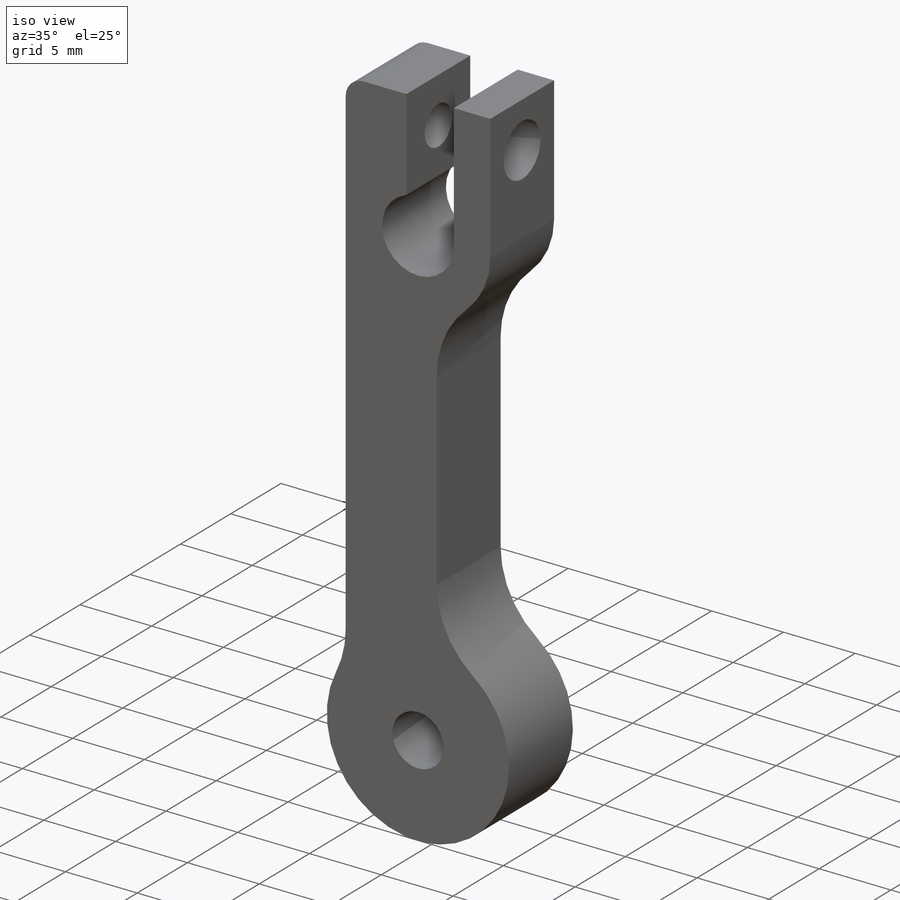
[diagram: iso view]
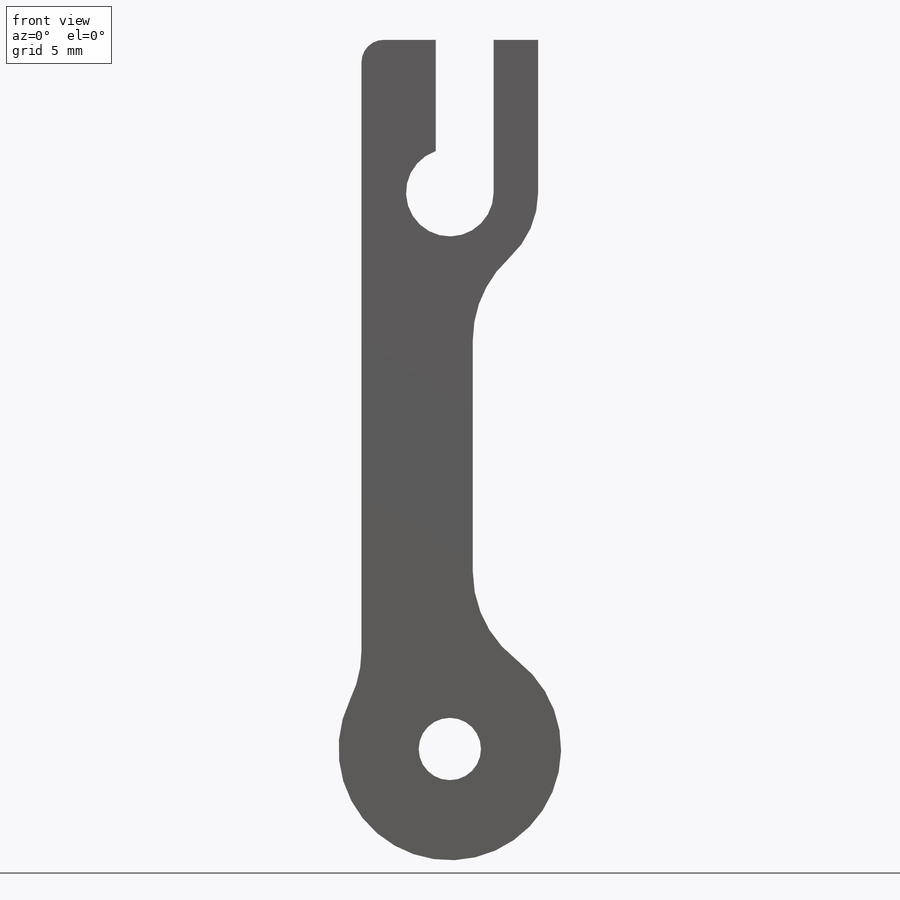
[diagram: front view]
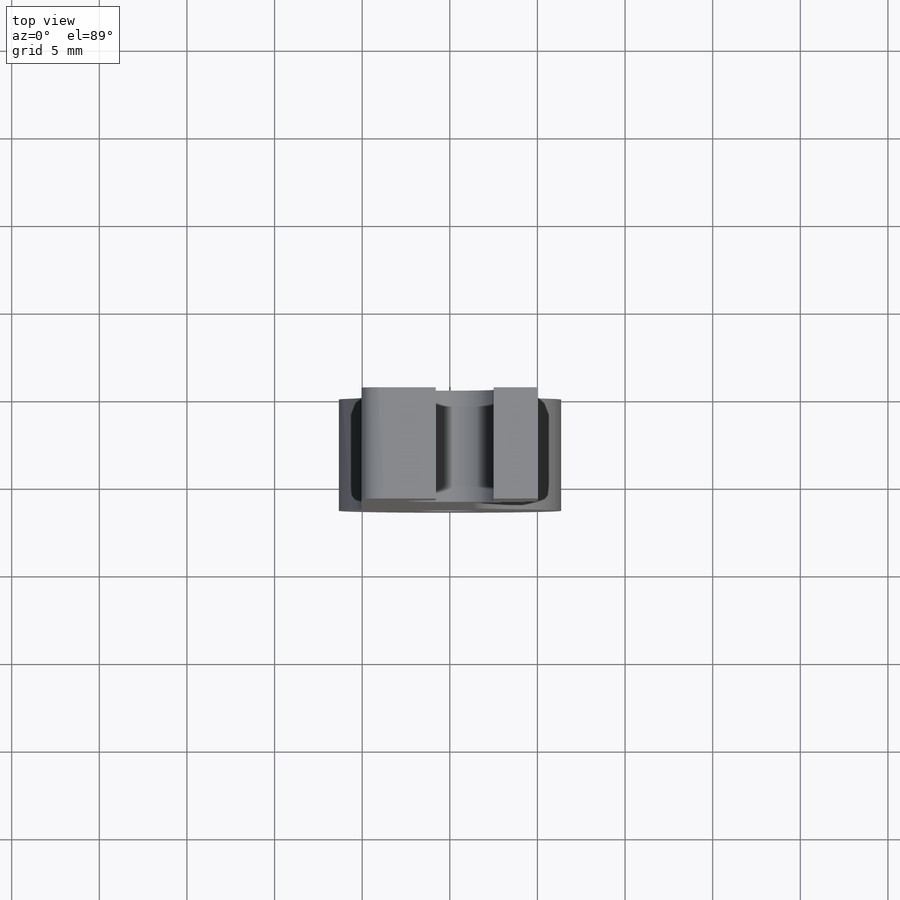
[diagram: top view]
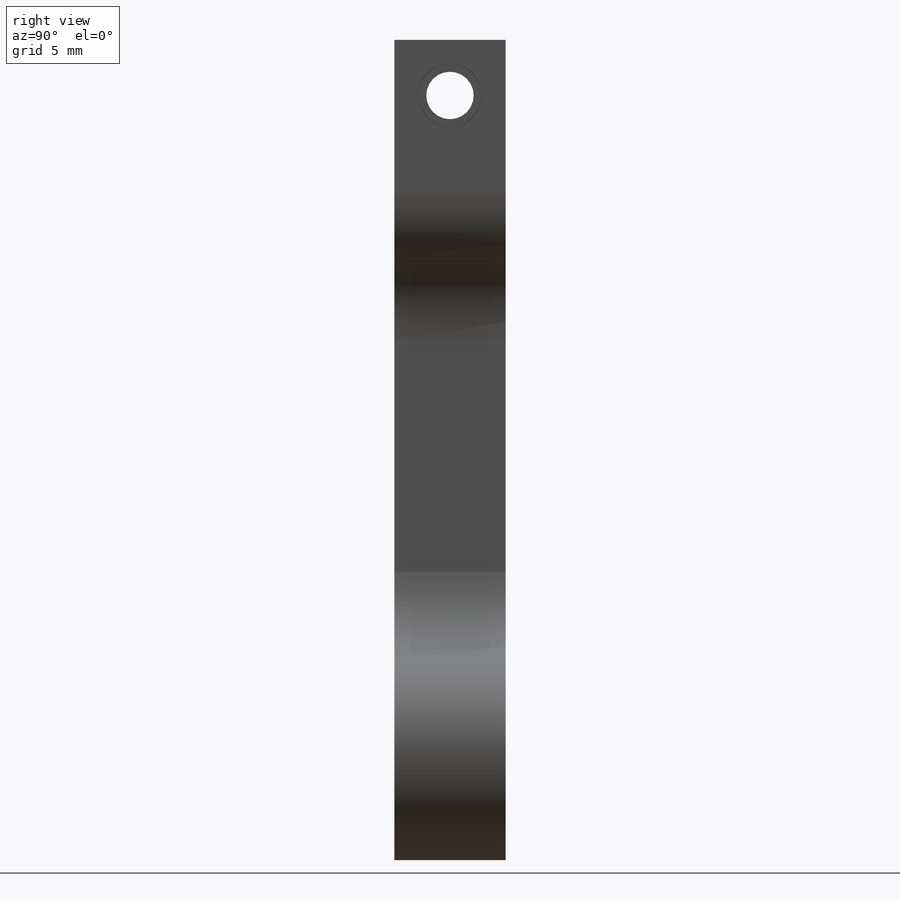
[diagram: right view]
SOLIDWORKS PART (.sldprt)
format: sldprt  version: not decoded by parser v0  size: 238,080 bytes
history: native  units: mm
features: sketch x5, hole x2, material x1, extrude x1, fillet x1, thread x1 (+13 scaffold rows collapsed)
feature tree (24):
  scaffold x13  (default folders/planes/origin — collapsed)
  material  "6061-T6 (SS)"
  sketch  "Sketch1"  dims[c1.D2=5.0mm c1.D3=3.556mm c1.D6=6.35mm c1.D1=31.75mm c1.D4=3.302mm c1.D5=8.85mm c2.D6=60.325mm c3.D6=~179.723464deg c4.D6=10.16mm c4.D7=2.54mm c4.D8=2.54mm c4.D9=6.35mm c4.D5=6.35mm]
  extrude  "Boss-Extrude1"  Depth=6.35mm
  fillet  "Fillet1"  Radius=1.27mm
  hole  "#6-32 Tapped Hole1"  Diameter=2.7051mm Depth=11.39mm
  sketch  "Sketch3"  dims[D1=3.175mm D2=3.175mm]
  sketch  "Sketch2"  dims[hole-wizard template sketch: 60 standard entries collapsed; hole parameters kept: c18.Thru Tap Drill Depth=11.39mm]
  thread  "Hole Thread1"  Diameter=3.5052mm  [1 undecoded]
  hole  "#6 Clearance Hole1"  Diameter=3.6576mm Depth=3.175mm
  sketch  "3DSketch1"
  sketch  "Sketch5"  dims[hole-wizard template sketch: 47 standard entries collapsed; hole parameters kept: c15.Hole Depth=3.175mm c15.D3=~14.816244mm c15.Drill Angle=118.0deg]
decode coverage: 9 of 10 modeling features carry decoded parameters
note: ~ marks probable driven/reference dimensions
note: 1 parameter value undecoded
note: suppression state not decoded; provenance and decode notes live in map.json
